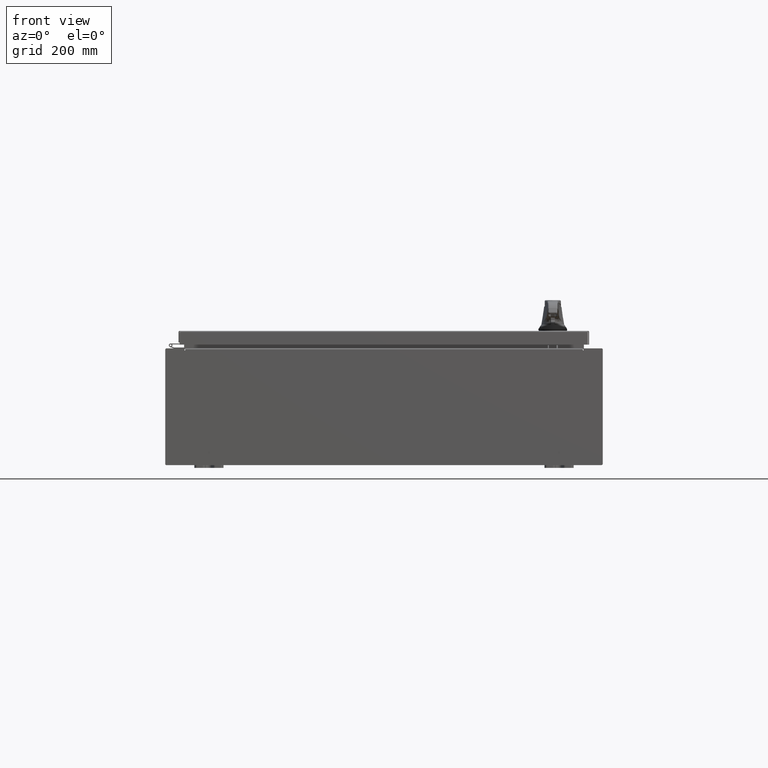
[diagram: clean part render]
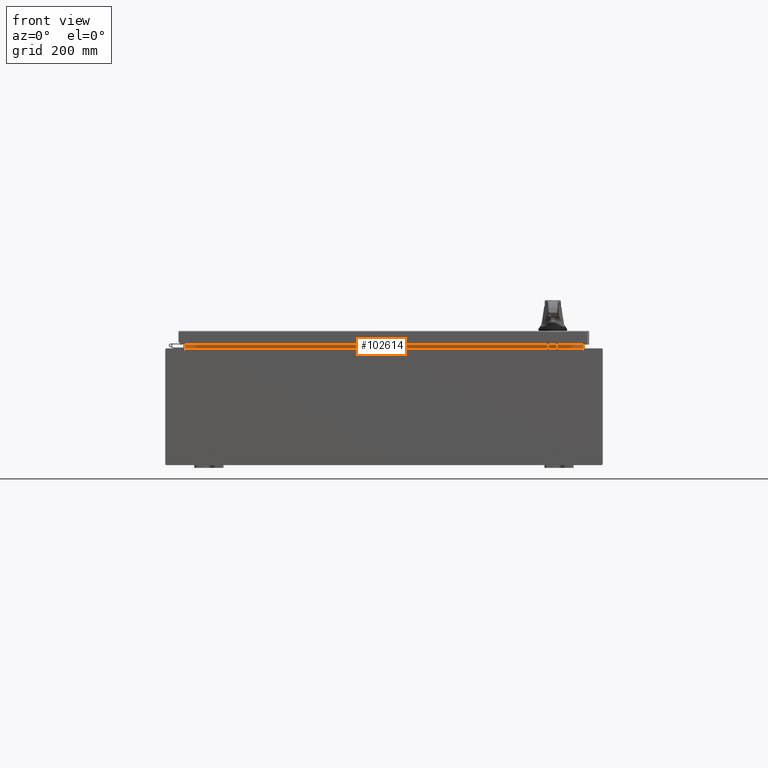
[diagram: same view with one face highlighted and labeled with its STEP entity id]
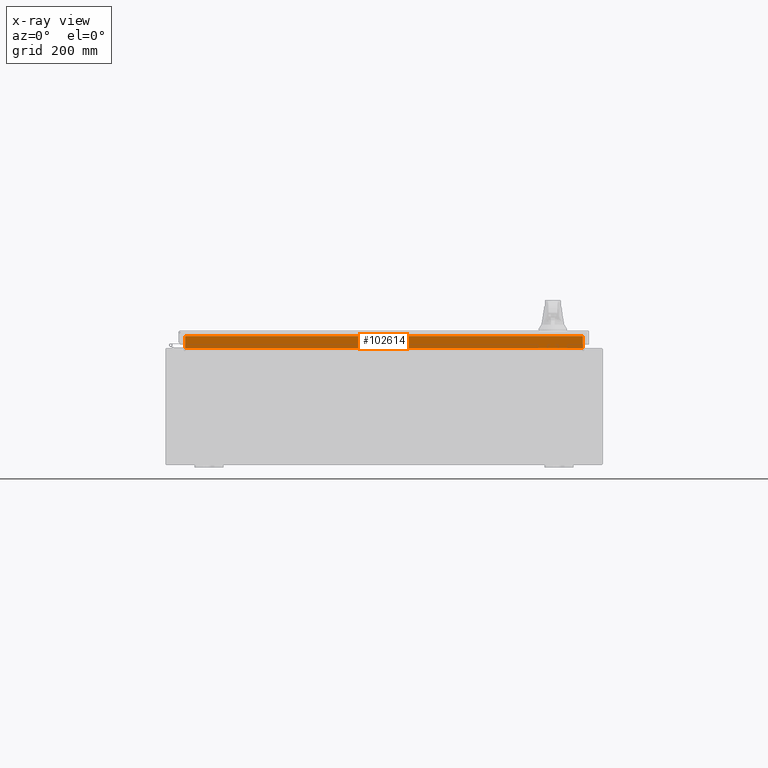
[diagram: x-ray of the same camera — body ghosted, the highlighted face saturated]
A machine part, front view. The second image highlights one B-rep face of the part: STEP entity #102614.
The next image is the same camera in x-ray: the body ghosted, the highlighted face saturated — about 0% of this face is hidden behind the body in this view.
In plain terms, the highlighted planar face has unit normal (0, -1, 0).
Its self-contained STEP definition (entity closure, byte-faithful):
#3092 = VECTOR ( 'NONE', #109522, 39.37007874015748100 ) ;
#7759 = CARTESIAN_POINT ( 'NONE',  ( -13.63719999999999800, -1.300299999999999300, 4.837600000000003700 ) ) ;
#9885 = ORIENTED_EDGE ( 'NONE', *, *, #109876, .F. ) ;
#10977 = CARTESIAN_POINT ( 'NONE',  ( -13.63719999999999800, -1.300299999999999800, 4.013000000000003500 ) ) ;
#17244 = VECTOR ( 'NONE', #23521, 39.37007874015748100 ) ;
#21923 = EDGE_CURVE ( 'NONE', #47871, #46113, #104087, .T. ) ;
#23521 = DIRECTION ( 'NONE',  ( -0.0000000000000000000, -0.0000000000000000000, 1.000000000000000000 ) ) ;
#26327 = VECTOR ( 'NONE', #34502, 39.37007874015748100 ) ;
#32314 = LINE ( 'NONE', #91334, #26327 ) ;
#32629 = EDGE_LOOP ( 'NONE', ( #74040, #111393, #9885, #59127 ) ) ;
#34502 = DIRECTION ( 'NONE',  ( 1.000000000000000000, 0.0000000000000000000, -2.003232330437526000E-017 ) ) ;
#36300 = DIRECTION ( 'NONE',  ( 0.0000000000000000000, 1.000000000000000000, 0.0000000000000000000 ) ) ;
#43493 = CARTESIAN_POINT ( 'NONE',  ( -13.63719999999999800, -1.300299999999999800, 4.000000000000004400 ) ) ;
#44014 = DIRECTION ( 'NONE',  ( -1.000000000000000000, -0.0000000000000000000, -0.0000000000000000000 ) ) ;
#46113 = VERTEX_POINT ( 'NONE', #10977 ) ;
#47022 = VECTOR ( 'NONE', #44014, 39.37007874015748100 ) ;
#47871 = VERTEX_POINT ( 'NONE', #7759 ) ;
#48619 = AXIS2_PLACEMENT_3D ( 'NONE', #73601, #36300, #102692 ) ;
#51720 = CARTESIAN_POINT ( 'NONE',  ( 13.63720000000000400, -1.300299999999999800, 4.837600000000003700 ) ) ;
#59127 = ORIENTED_EDGE ( 'NONE', *, *, #98446, .F. ) ;
#70703 = LINE ( 'NONE', #70836, #17244 ) ;
#70836 = CARTESIAN_POINT ( 'NONE',  ( 13.63720000000000400, -1.300299999999999800, 4.925300000000004500 ) ) ;
#72248 = LINE ( 'NONE', #110452, #47022 ) ;
#73601 = CARTESIAN_POINT ( 'NONE',  ( 0.0000000000000000000, -1.300299999999999800, 0.0000000000000000000 ) ) ;
#74040 = ORIENTED_EDGE ( 'NONE', *, *, #21923, .F. ) ;
#78673 = VERTEX_POINT ( 'NONE', #51720 ) ;
#91334 = CARTESIAN_POINT ( 'NONE',  ( -13.63719999999999800, -1.300299999999999800, 4.013000000000003500 ) ) ;
#93125 = PLANE ( 'NONE',  #48619 ) ;
#98446 = EDGE_CURVE ( 'NONE', #46113, #122408, #32314, .T. ) ;
#102614 = ADVANCED_FACE ( 'NONE', ( #119497 ), #93125, .T. ) ;
#102692 = DIRECTION ( 'NONE',  ( 0.0000000000000000000, -0.0000000000000000000, 1.000000000000000000 ) ) ;
#104087 = LINE ( 'NONE', #43493, #3092 ) ;
#109435 = EDGE_CURVE ( 'NONE', #78673, #47871, #72248, .T. ) ;
#109522 = DIRECTION ( 'NONE',  ( -0.0000000000000000000, -0.0000000000000000000, -1.000000000000000000 ) ) ;
#109876 = EDGE_CURVE ( 'NONE', #122408, #78673, #70703, .T. ) ;
#110452 = CARTESIAN_POINT ( 'NONE',  ( 13.63720000000000400, -1.300299999999999300, 4.837600000000003700 ) ) ;
#111393 = ORIENTED_EDGE ( 'NONE', *, *, #109435, .F. ) ;
#119497 = FACE_OUTER_BOUND ( 'NONE', #32629, .T. ) ;
#122408 = VERTEX_POINT ( 'NONE', #122785 ) ;
#122785 = CARTESIAN_POINT ( 'NONE',  ( 13.63720000000000000, -1.300299999999999800, 4.013000000000003500 ) ) ;